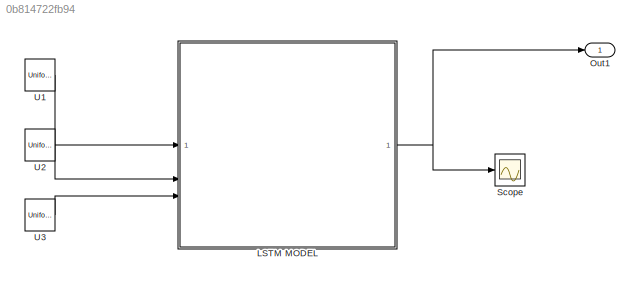
MODEL slx_0b814722fb94
KIND model
CONFIG AbsTol = auto
CONFIG EnableMultiTasking = off
CONFIG FixedStep = auto
CONFIG MaxStep = auto
CONFIG MinStep = auto
CONFIG RelTol = 1e-3
CONFIG SampleTimeConstraint = Unconstrained
CONFIG SolverName = VariableStepAuto
CONFIG StartTime = 0.0
CONFIG StopTime = 50
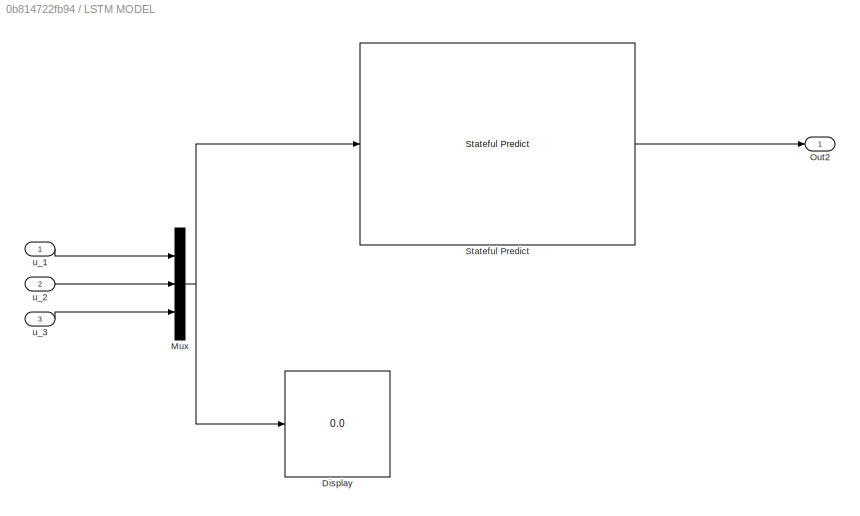
BLOCK [SubSystem] LSTM MODEL
BLOCK [Display] LSTM MODEL/Display
  Decimation = 1
BLOCK [Mux] LSTM MODEL/Mux
  DisplayOption = bar
  Inputs = 3
BLOCK [Outport] LSTM MODEL/Out2
BLOCK [Reference] LSTM MODEL/Stateful Predict  REF=deeplib/Stateful Predict
  SourceBlock = deeplib/Stateful Predict
  SourceType = Stateful Predict
BLOCK [Inport] LSTM MODEL/u_1
BLOCK [Inport] LSTM MODEL/u_2
  Port = 2
BLOCK [Inport] LSTM MODEL/u_3
  Port = 3
BLOCK [Outport] Out1
BLOCK [Scope] Scope
  Floating = off
  NumInputPorts = 1
  ScopeSpecificationString = Simulink.scopes.TimeScopeBlockCfg('CurrentConfiguration', extmgr.ConfigurationSet(extmgr.Configuration('Core','General UI',true),extmgr.Configuration('Core','Source UI',true),extmgr.Configuration('Sources','WiredSimulink',true),extmgr.Configuration('Visuals','Time Domain',true),extmgr.Configuration('Tools','Plot Navigation',true),extmgr.Configuration('Tools','Measurements',true)),'Version','2024b'...<+1ch>
BLOCK [UniformRandomNumber] U1
  Maximum = 50
  Minimum = 0
  SampleTime = 0.1
BLOCK [UniformRandomNumber] U2
  Maximum = 50
  Minimum = 0
  SampleTime = 0.1
BLOCK [UniformRandomNumber] U3
  Maximum = 50
  Minimum = 0
  SampleTime = 0.1
NET LSTM MODEL/Mux:1 -> LSTM MODEL/Display:1, LSTM MODEL/Stateful Predict:1
LINE LSTM MODEL/Stateful Predict:1 -> LSTM MODEL/Out2:1
LINE LSTM MODEL/u_1:1 -> LSTM MODEL/Mux:1
LINE LSTM MODEL/u_2:1 -> LSTM MODEL/Mux:2
LINE LSTM MODEL/u_3:1 -> LSTM MODEL/Mux:3
NET LSTM MODEL:1 -> Out1:1, Scope:1
LINE U1:1 -> LSTM MODEL:1
LINE U2:1 -> LSTM MODEL:2
LINE U3:1 -> LSTM MODEL:3
note: NET lines group one-source signal fan-out (src -> all destinations, sorted); 1:1 wires keep LINE
